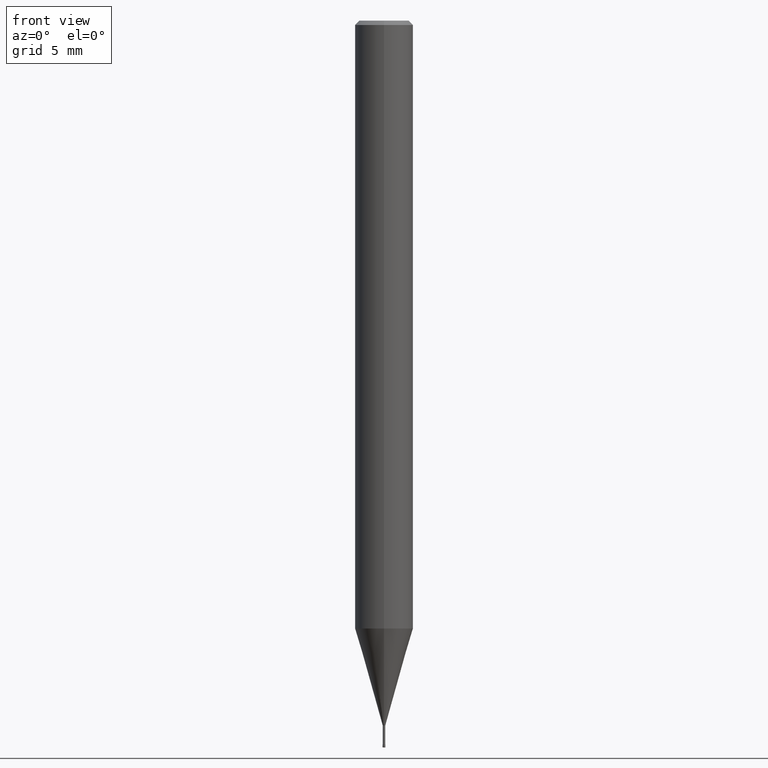
[diagram: clean part render]
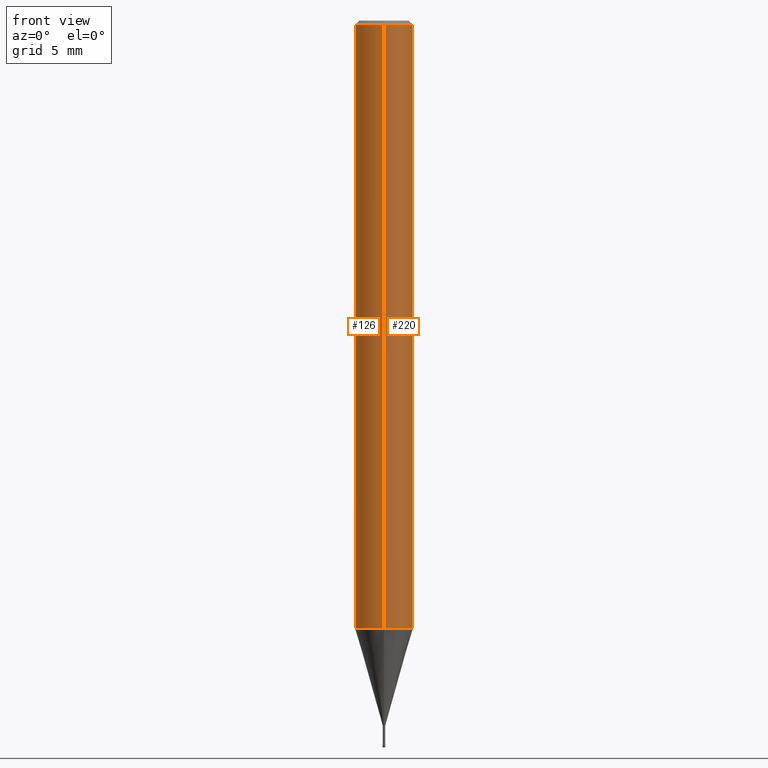
[diagram: same view with one multi-face feature highlighted, each face labeled with its STEP entity id]
A machine part, front view. The highlighted faces form ONE feature: a constant-radius fillet chain: 2 tangent blend faces with common blend radius 2 mm. The faces share edges in the B-rep.
Their STEP definitions:
[1] entity #220 (Cylinder):
#114=EDGE_CURVE('',#136,#176,#271,.T.);
#136=VERTEX_POINT('',#297);
#172=EDGE_CURVE('',#200,#176,#338,.T.);
#176=VERTEX_POINT('',#342);
#196=EDGE_CURVE('',#200,#218,#365,.T.);
#200=VERTEX_POINT('',#369);
#212=EDGE_CURVE('',#218,#136,#382,.T.);
#218=VERTEX_POINT('',#388);
#220=ADVANCED_FACE('',(#390),#391,.T.);
#271=LINE('',#440,#441);
#297=CARTESIAN_POINT('',(2.44921270764475E-016,-2.0,-41.822));
#338=CIRCLE('',#519,2.0);
#342=CARTESIAN_POINT('',(2.44921270764475E-016,-2.0,-0.299999999999997));
#365=LINE('',#556,#557);
#369=CARTESIAN_POINT('',(0.0,2.0,-0.299999999999997));
#382=CIRCLE('',#577,2.0);
#388=CARTESIAN_POINT('',(0.0,2.0,-41.822));
#390=FACE_OUTER_BOUND('',#587,.T.);
#391=CYLINDRICAL_SURFACE('',#588,2.0);
#440=CARTESIAN_POINT('',(2.44921270764475E-016,-2.0,-21.061));
#441=VECTOR('',#640,1.0);
#519=AXIS2_PLACEMENT_3D('',#726,#727,#728);
#556=CARTESIAN_POINT('',(-2.44921270764475E-016,2.0,-21.061));
#557=VECTOR('',#768,1.0);
#577=AXIS2_PLACEMENT_3D('',#782,#783,#784);
#587=EDGE_LOOP('',(#792,#793,#794,#795));
#588=AXIS2_PLACEMENT_3D('',#796,#797,#798);
#640=DIRECTION('',(-0.0,-0.0,1.0));
#726=CARTESIAN_POINT('',(0.0,0.0,-0.299999999999997));
#727=DIRECTION('',(0.0,0.0,-1.0));
#728=DIRECTION('',(0.0,1.0,0.0));
#768=DIRECTION('',(0.0,0.0,-1.0));
#782=CARTESIAN_POINT('',(0.0,0.0,-41.822));
#783=DIRECTION('',(0.0,0.0,-1.0));
#784=DIRECTION('',(0.0,1.0,0.0));
#792=ORIENTED_EDGE('',*,*,#196,.F.);
#793=ORIENTED_EDGE('',*,*,#172,.T.);
#794=ORIENTED_EDGE('',*,*,#114,.F.);
#795=ORIENTED_EDGE('',*,*,#212,.F.);
#796=CARTESIAN_POINT('',(0.0,0.0,-21.061));
#797=DIRECTION('',(-0.0,-0.0,1.0));
#798=DIRECTION('',(0.0,1.0,0.0));
[2] entity #126 (Cylinder):
#102=EDGE_CURVE('',#176,#200,#255,.T.);
#114=EDGE_CURVE('',#136,#176,#271,.T.);
#126=ADVANCED_FACE('',(#285),#286,.T.);
#136=VERTEX_POINT('',#297);
#170=EDGE_CURVE('',#136,#218,#336,.T.);
#176=VERTEX_POINT('',#342);
#196=EDGE_CURVE('',#200,#218,#365,.T.);
#200=VERTEX_POINT('',#369);
#218=VERTEX_POINT('',#388);
#255=CIRCLE('',#420,2.0);
#271=LINE('',#440,#441);
#285=FACE_OUTER_BOUND('',#457,.T.);
#286=CYLINDRICAL_SURFACE('',#458,2.0);
#297=CARTESIAN_POINT('',(2.44921270764475E-016,-2.0,-41.822));
#336=CIRCLE('',#516,2.0);
#342=CARTESIAN_POINT('',(2.44921270764475E-016,-2.0,-0.299999999999997));
#365=LINE('',#556,#557);
#369=CARTESIAN_POINT('',(0.0,2.0,-0.299999999999997));
#388=CARTESIAN_POINT('',(0.0,2.0,-41.822));
#420=AXIS2_PLACEMENT_3D('',#609,#610,#611);
#440=CARTESIAN_POINT('',(2.44921270764475E-016,-2.0,-21.061));
#441=VECTOR('',#640,1.0);
#457=EDGE_LOOP('',(#664,#665,#666,#667));
#458=AXIS2_PLACEMENT_3D('',#668,#669,#670);
#516=AXIS2_PLACEMENT_3D('',#723,#724,#725);
#556=CARTESIAN_POINT('',(-2.44921270764475E-016,2.0,-21.061));
#557=VECTOR('',#768,1.0);
#609=CARTESIAN_POINT('',(0.0,0.0,-0.299999999999997));
#610=DIRECTION('',(0.0,0.0,-1.0));
#611=DIRECTION('',(0.0,1.0,0.0));
#640=DIRECTION('',(-0.0,-0.0,1.0));
#664=ORIENTED_EDGE('',*,*,#196,.T.);
#665=ORIENTED_EDGE('',*,*,#170,.F.);
#666=ORIENTED_EDGE('',*,*,#114,.T.);
#667=ORIENTED_EDGE('',*,*,#102,.T.);
#668=CARTESIAN_POINT('',(0.0,0.0,-21.061));
#669=DIRECTION('',(-0.0,-0.0,1.0));
#670=DIRECTION('',(0.0,1.0,0.0));
#723=CARTESIAN_POINT('',(0.0,0.0,-41.822));
#724=DIRECTION('',(0.0,0.0,-1.0));
#725=DIRECTION('',(0.0,1.0,0.0));
#768=DIRECTION('',(0.0,0.0,-1.0));